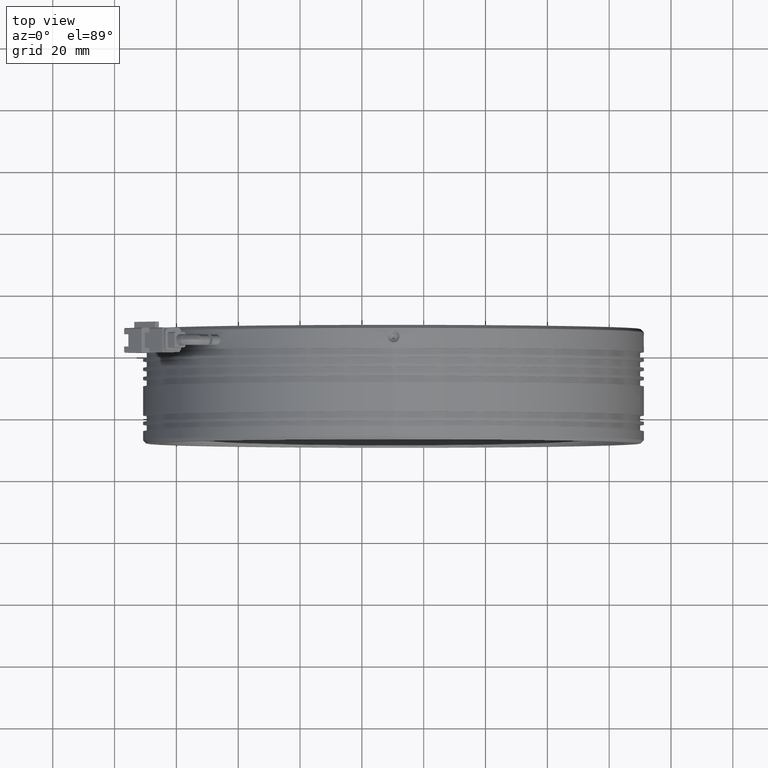
[diagram: clean part render]
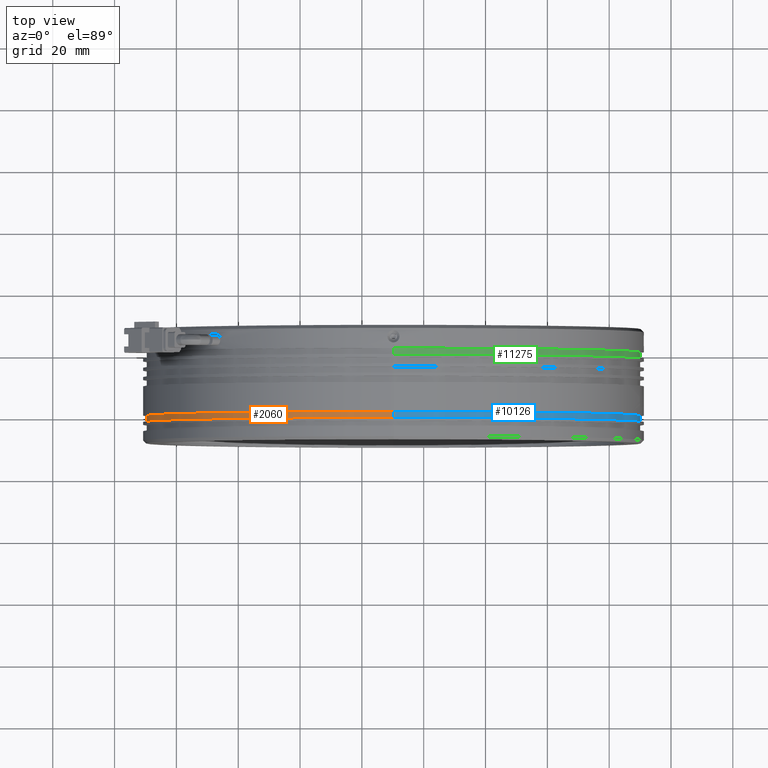
[diagram: same view with three faces highlighted in distinct colors, each labeled with its STEP entity id]
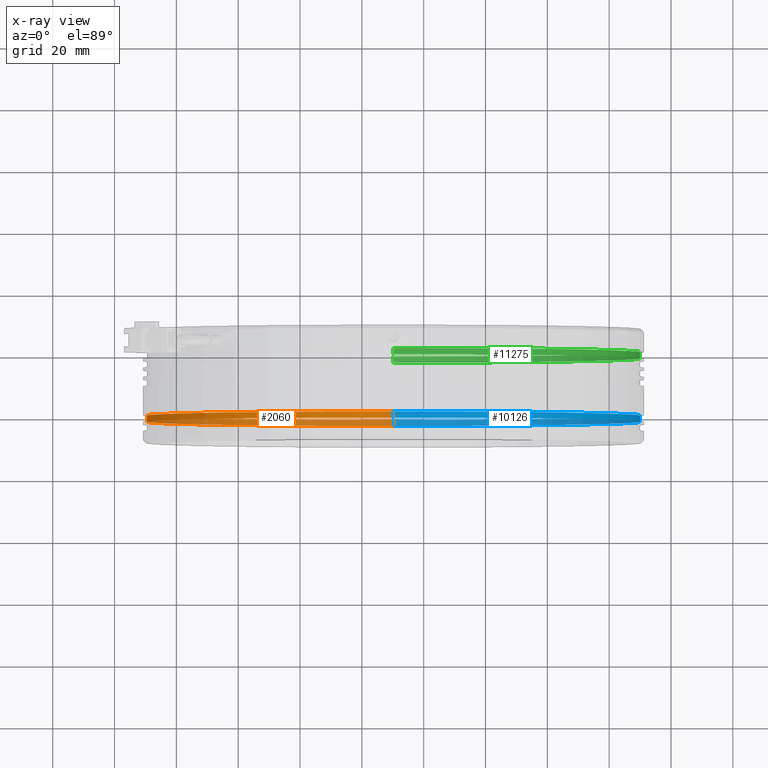
[diagram: x-ray of the same camera — body ghosted, the three highlighted faces saturated]
A machine part, top view with three faces highlighted in distinct colors.
The next image is the same camera in x-ray (body ghosted, the three faces saturated) — at least one of them is partly hidden behind the body in this view.
Their STEP definitions:

[orange] entity #2060 — the highlighted cylindrical surface (partial cylindrical patch) has radius 79.8 mm, axis along (-0, -1, -0).
#1005 = LINE ( 'NONE', #2404, #2398 ) ;
#1760 = DIRECTION ( 'NONE',  ( -0.0000000000000000000, -1.000000000000000000, -0.0000000000000000000 ) ) ;
#1848 = CARTESIAN_POINT ( 'NONE',  ( -9.785022266880025300, -2.128885628159951500, 79.79999999999991200 ) ) ;
#2060 = ADVANCED_FACE ( 'NONE', ( #12345 ), #8885, .T. ) ;
#2068 = VERTEX_POINT ( 'NONE', #6696 ) ;
#2113 = VERTEX_POINT ( 'NONE', #11861 ) ;
#2398 = VECTOR ( 'NONE', #8442, 1000.000000000000000 ) ;
#2404 = CARTESIAN_POINT ( 'NONE',  ( -9.785022266880025300, -37.73097191106735000, 79.79999999999991200 ) ) ;
#2943 = AXIS2_PLACEMENT_3D ( 'NONE', #5587, #5631, #5681 ) ;
#3927 = CARTESIAN_POINT ( 'NONE',  ( -9.785022266880036000, -2.128885628159951500, 0.0000000000000000000 ) ) ;
#4566 = LINE ( 'NONE', #5602, #12366 ) ;
#4949 = DIRECTION ( 'NONE',  ( 0.0000000000000000000, 0.0000000000000000000, -1.000000000000000000 ) ) ;
#5381 = CIRCLE ( 'NONE', #7840, 79.79999999999991200 ) ;
#5424 = EDGE_LOOP ( 'NONE', ( #5913, #7389, #12362, #10682 ) ) ;
#5587 = CARTESIAN_POINT ( 'NONE',  ( -9.785022266880036000, -37.73097191106735000, 0.0000000000000000000 ) ) ;
#5602 = CARTESIAN_POINT ( 'NONE',  ( -9.785022266880036000, -37.73097191106735000, -79.79999999999991200 ) ) ;
#5631 = DIRECTION ( 'NONE',  ( -0.0000000000000000000, -1.000000000000000000, -0.0000000000000000000 ) ) ;
#5681 = DIRECTION ( 'NONE',  ( 0.0000000000000000000, 0.0000000000000000000, -1.000000000000000000 ) ) ;
#5913 = ORIENTED_EDGE ( 'NONE', *, *, #6104, .F. ) ;
#6104 = EDGE_CURVE ( 'NONE', #11279, #8404, #1005, .T. ) ;
#6184 = EDGE_CURVE ( 'NONE', #2113, #2068, #4566, .T. ) ;
#6696 = CARTESIAN_POINT ( 'NONE',  ( -9.785022266880036000, -2.128885628159951500, -79.79999999999991200 ) ) ;
#7389 = ORIENTED_EDGE ( 'NONE', *, *, #11670, .T. ) ;
#7808 = CARTESIAN_POINT ( 'NONE',  ( -9.785022266880036000, -0.1288856281599498600, 0.0000000000000000000 ) ) ;
#7840 = AXIS2_PLACEMENT_3D ( 'NONE', #3927, #11039, #4949 ) ;
#8404 = VERTEX_POINT ( 'NONE', #1848 ) ;
#8442 = DIRECTION ( 'NONE',  ( -0.0000000000000000000, -1.000000000000000000, -0.0000000000000000000 ) ) ;
#8616 = CIRCLE ( 'NONE', #12477, 79.79999999999991200 ) ;
#8806 = DIRECTION ( 'NONE',  ( 0.0000000000000000000, 0.0000000000000000000, -1.000000000000000000 ) ) ;
#8885 = CYLINDRICAL_SURFACE ( 'NONE', #2943, 79.79999999999991200 ) ;
#10682 = ORIENTED_EDGE ( 'NONE', *, *, #11768, .F. ) ;
#11039 = DIRECTION ( 'NONE',  ( -0.0000000000000000000, -1.000000000000000000, -0.0000000000000000000 ) ) ;
#11279 = VERTEX_POINT ( 'NONE', #11927 ) ;
#11670 = EDGE_CURVE ( 'NONE', #11279, #2113, #8616, .T. ) ;
#11768 = EDGE_CURVE ( 'NONE', #8404, #2068, #5381, .T. ) ;
#11861 = CARTESIAN_POINT ( 'NONE',  ( -9.785022266880036000, -0.1288856281599498600, -79.79999999999991200 ) ) ;
#11927 = CARTESIAN_POINT ( 'NONE',  ( -9.785022266880025300, -0.1288856281599498600, 79.79999999999991200 ) ) ;
#12345 = FACE_OUTER_BOUND ( 'NONE', #5424, .T. ) ;
#12362 = ORIENTED_EDGE ( 'NONE', *, *, #6184, .T. ) ;
#12366 = VECTOR ( 'NONE', #12710, 1000.000000000000000 ) ;
#12477 = AXIS2_PLACEMENT_3D ( 'NONE', #7808, #1760, #8806 ) ;
#12710 = DIRECTION ( 'NONE',  ( -0.0000000000000000000, -1.000000000000000000, -0.0000000000000000000 ) ) ;

[blue] entity #10126 — the highlighted cylindrical surface (partial cylindrical patch) has radius 79.8 mm, axis along (-0, -1, -0).
#128 = ORIENTED_EDGE ( 'NONE', *, *, #6104, .T. ) ;
#1005 = LINE ( 'NONE', #2404, #2398 ) ;
#1481 = CARTESIAN_POINT ( 'NONE',  ( -9.785022266880036000, -2.128885628159951500, 0.0000000000000000000 ) ) ;
#1848 = CARTESIAN_POINT ( 'NONE',  ( -9.785022266880025300, -2.128885628159951500, 79.79999999999991200 ) ) ;
#2030 = EDGE_LOOP ( 'NONE', ( #12586, #128, #6227, #3515 ) ) ;
#2068 = VERTEX_POINT ( 'NONE', #6696 ) ;
#2113 = VERTEX_POINT ( 'NONE', #11861 ) ;
#2398 = VECTOR ( 'NONE', #8442, 1000.000000000000000 ) ;
#2404 = CARTESIAN_POINT ( 'NONE',  ( -9.785022266880025300, -37.73097191106735000, 79.79999999999991200 ) ) ;
#2488 = DIRECTION ( 'NONE',  ( 0.0000000000000000000, 0.0000000000000000000, -1.000000000000000000 ) ) ;
#3382 = AXIS2_PLACEMENT_3D ( 'NONE', #1481, #8526, #2488 ) ;
#3392 = CARTESIAN_POINT ( 'NONE',  ( -9.785022266880036000, -0.1288856281599498600, 0.0000000000000000000 ) ) ;
#3515 = ORIENTED_EDGE ( 'NONE', *, *, #6184, .F. ) ;
#3551 = AXIS2_PLACEMENT_3D ( 'NONE', #3392, #10493, #4387 ) ;
#4061 = AXIS2_PLACEMENT_3D ( 'NONE', #6314, #11336, #6361 ) ;
#4110 = CIRCLE ( 'NONE', #3382, 79.79999999999991200 ) ;
#4387 = DIRECTION ( 'NONE',  ( 0.0000000000000000000, 0.0000000000000000000, -1.000000000000000000 ) ) ;
#4566 = LINE ( 'NONE', #5602, #12366 ) ;
#5602 = CARTESIAN_POINT ( 'NONE',  ( -9.785022266880036000, -37.73097191106735000, -79.79999999999991200 ) ) ;
#6091 = EDGE_CURVE ( 'NONE', #2113, #11279, #7783, .T. ) ;
#6104 = EDGE_CURVE ( 'NONE', #11279, #8404, #1005, .T. ) ;
#6121 = EDGE_CURVE ( 'NONE', #2068, #8404, #4110, .T. ) ;
#6184 = EDGE_CURVE ( 'NONE', #2113, #2068, #4566, .T. ) ;
#6227 = ORIENTED_EDGE ( 'NONE', *, *, #6121, .F. ) ;
#6314 = CARTESIAN_POINT ( 'NONE',  ( -9.785022266880036000, -37.73097191106735000, 0.0000000000000000000 ) ) ;
#6361 = DIRECTION ( 'NONE',  ( 0.0000000000000000000, 0.0000000000000000000, -1.000000000000000000 ) ) ;
#6696 = CARTESIAN_POINT ( 'NONE',  ( -9.785022266880036000, -2.128885628159951500, -79.79999999999991200 ) ) ;
#7783 = CIRCLE ( 'NONE', #3551, 79.79999999999991200 ) ;
#8008 = FACE_OUTER_BOUND ( 'NONE', #2030, .T. ) ;
#8404 = VERTEX_POINT ( 'NONE', #1848 ) ;
#8442 = DIRECTION ( 'NONE',  ( -0.0000000000000000000, -1.000000000000000000, -0.0000000000000000000 ) ) ;
#8526 = DIRECTION ( 'NONE',  ( -0.0000000000000000000, -1.000000000000000000, -0.0000000000000000000 ) ) ;
#10126 = ADVANCED_FACE ( 'NONE', ( #8008 ), #12136, .T. ) ;
#10493 = DIRECTION ( 'NONE',  ( -0.0000000000000000000, -1.000000000000000000, -0.0000000000000000000 ) ) ;
#11279 = VERTEX_POINT ( 'NONE', #11927 ) ;
#11336 = DIRECTION ( 'NONE',  ( -0.0000000000000000000, -1.000000000000000000, -0.0000000000000000000 ) ) ;
#11861 = CARTESIAN_POINT ( 'NONE',  ( -9.785022266880036000, -0.1288856281599498600, -79.79999999999991200 ) ) ;
#11927 = CARTESIAN_POINT ( 'NONE',  ( -9.785022266880025300, -0.1288856281599498600, 79.79999999999991200 ) ) ;
#12136 = CYLINDRICAL_SURFACE ( 'NONE', #4061, 79.79999999999991200 ) ;
#12366 = VECTOR ( 'NONE', #12710, 1000.000000000000000 ) ;
#12586 = ORIENTED_EDGE ( 'NONE', *, *, #6091, .T. ) ;
#12710 = DIRECTION ( 'NONE',  ( -0.0000000000000000000, -1.000000000000000000, -0.0000000000000000000 ) ) ;

[green] entity #11275 — the highlighted cylindrical surface (partial cylindrical patch) has radius 79.8 mm, axis along (-0, -1, -0).
#133 = VERTEX_POINT ( 'NONE', #12829 ) ;
#154 = EDGE_LOOP ( 'NONE', ( #6797, #2782, #7664, #12166 ) ) ;
#1722 = CARTESIAN_POINT ( 'NONE',  ( -9.785022266880036000, 18.37111437184005400, 0.0000000000000000000 ) ) ;
#2092 = CARTESIAN_POINT ( 'NONE',  ( -9.785022266880025300, 18.37111437184005400, 79.79999999999999700 ) ) ;
#2695 = CARTESIAN_POINT ( 'NONE',  ( -9.785022266880025300, -37.73097191106735000, 79.79999999999999700 ) ) ;
#2752 = DIRECTION ( 'NONE',  ( 0.0000000000000000000, 0.0000000000000000000, -1.000000000000000000 ) ) ;
#2773 = VERTEX_POINT ( 'NONE', #12764 ) ;
#2782 = ORIENTED_EDGE ( 'NONE', *, *, #5112, .T. ) ;
#2785 = DIRECTION ( 'NONE',  ( -0.0000000000000000000, -1.000000000000000000, -0.0000000000000000000 ) ) ;
#2817 = VECTOR ( 'NONE', #2785, 1000.000000000000000 ) ;
#2967 = CARTESIAN_POINT ( 'NONE',  ( -9.785022266880036000, 18.37111437184005400, -79.79999999999999700 ) ) ;
#3685 = CARTESIAN_POINT ( 'NONE',  ( -9.785022266880036000, 20.37111437184005400, 0.0000000000000000000 ) ) ;
#3798 = CARTESIAN_POINT ( 'NONE',  ( -9.785022266880036000, -37.73097191106735000, 0.0000000000000000000 ) ) ;
#4329 = CYLINDRICAL_SURFACE ( 'NONE', #9667, 79.79999999999999700 ) ;
#4670 = VECTOR ( 'NONE', #5724, 1000.000000000000000 ) ;
#4684 = DIRECTION ( 'NONE',  ( 0.0000000000000000000, 0.0000000000000000000, -1.000000000000000000 ) ) ;
#5093 = EDGE_CURVE ( 'NONE', #2773, #133, #12794, .T. ) ;
#5112 = EDGE_CURVE ( 'NONE', #133, #8660, #7354, .T. ) ;
#5128 = EDGE_CURVE ( 'NONE', #8660, #11355, #7694, .T. ) ;
#5162 = EDGE_CURVE ( 'NONE', #2773, #11355, #10552, .T. ) ;
#5724 = DIRECTION ( 'NONE',  ( -0.0000000000000000000, -1.000000000000000000, -0.0000000000000000000 ) ) ;
#6797 = ORIENTED_EDGE ( 'NONE', *, *, #5093, .T. ) ;
#6799 = DIRECTION ( 'NONE',  ( -0.0000000000000000000, -1.000000000000000000, -0.0000000000000000000 ) ) ;
#6916 = AXIS2_PLACEMENT_3D ( 'NONE', #3685, #10787, #4684 ) ;
#6936 = AXIS2_PLACEMENT_3D ( 'NONE', #1722, #8785, #2752 ) ;
#7354 = LINE ( 'NONE', #2695, #4670 ) ;
#7664 = ORIENTED_EDGE ( 'NONE', *, *, #5128, .T. ) ;
#7694 = CIRCLE ( 'NONE', #6936, 79.79999999999999700 ) ;
#7862 = CARTESIAN_POINT ( 'NONE',  ( -9.785022266880036000, -37.73097191106735000, -79.79999999999999700 ) ) ;
#8319 = FACE_OUTER_BOUND ( 'NONE', #154, .T. ) ;
#8660 = VERTEX_POINT ( 'NONE', #2092 ) ;
#8785 = DIRECTION ( 'NONE',  ( 0.0000000000000000000, 1.000000000000000000, 0.0000000000000000000 ) ) ;
#9667 = AXIS2_PLACEMENT_3D ( 'NONE', #3798, #6799, #10893 ) ;
#10552 = LINE ( 'NONE', #7862, #2817 ) ;
#10787 = DIRECTION ( 'NONE',  ( -0.0000000000000000000, -1.000000000000000000, -0.0000000000000000000 ) ) ;
#10893 = DIRECTION ( 'NONE',  ( 0.0000000000000000000, 0.0000000000000000000, -1.000000000000000000 ) ) ;
#11275 = ADVANCED_FACE ( 'NONE', ( #8319 ), #4329, .T. ) ;
#11355 = VERTEX_POINT ( 'NONE', #2967 ) ;
#12166 = ORIENTED_EDGE ( 'NONE', *, *, #5162, .F. ) ;
#12764 = CARTESIAN_POINT ( 'NONE',  ( -9.785022266880036000, 20.37111437184005400, -79.79999999999999700 ) ) ;
#12794 = CIRCLE ( 'NONE', #6916, 79.79999999999999700 ) ;
#12829 = CARTESIAN_POINT ( 'NONE',  ( -9.785022266880025300, 20.37111437184005400, 79.79999999999999700 ) ) ;